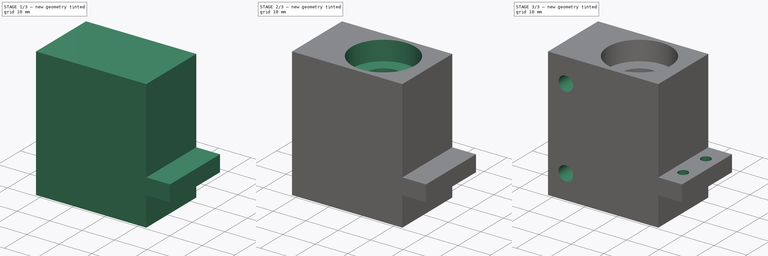
[diagram: build sequence overview — one tinted view per stage of 3, left to right]
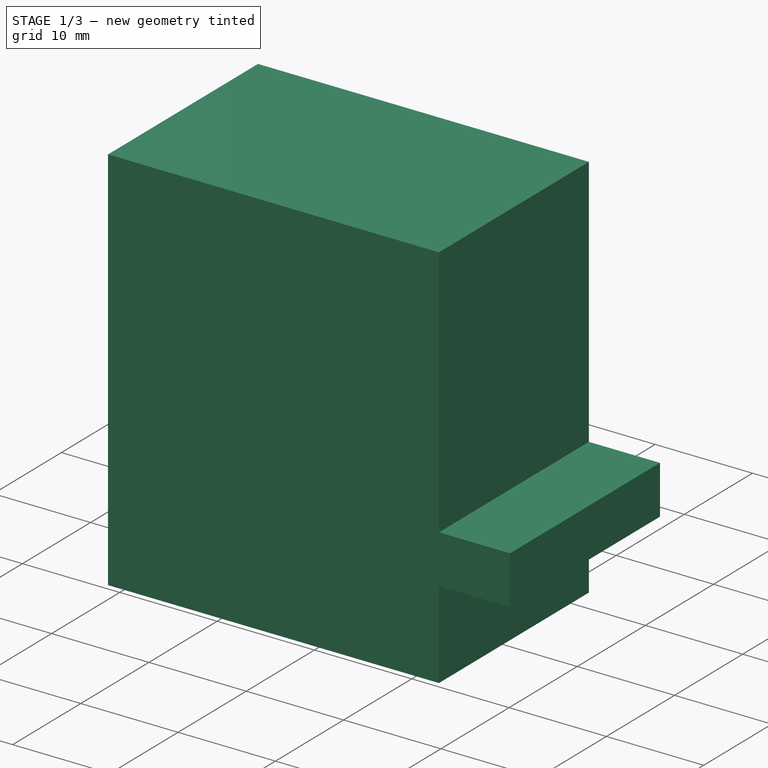
[diagram: stage 1 of 3 — iso view after this stage's code; geometry added in this stage tinted green]
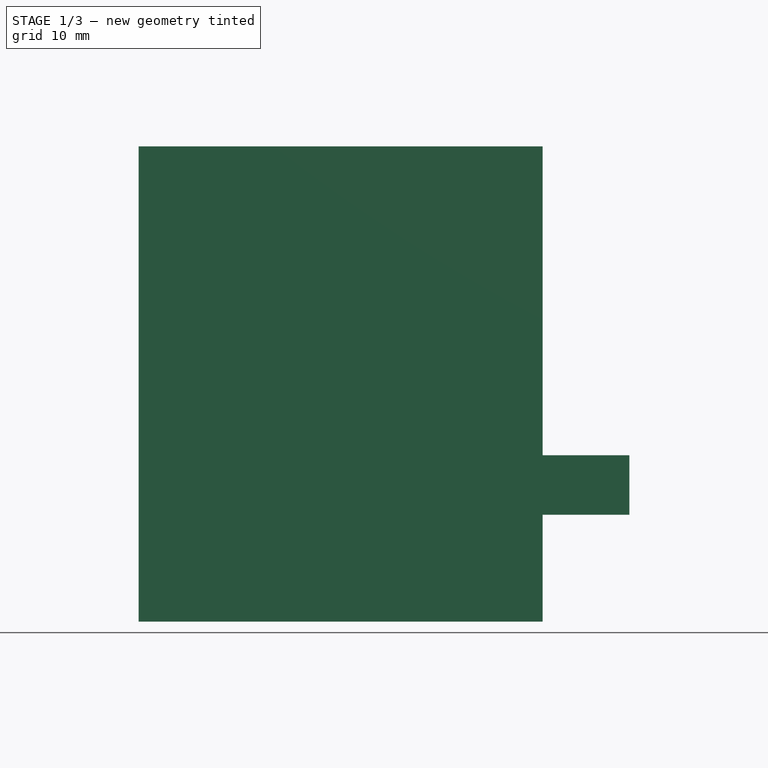
[diagram: stage 1 of 3 — front view after this stage's code; geometry added in this stage tinted green]
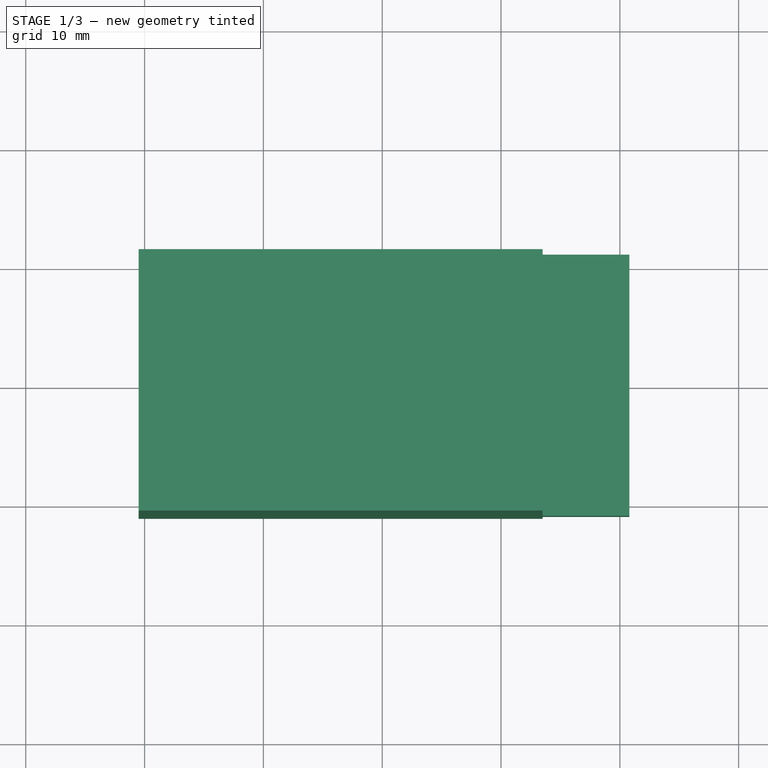
[diagram: stage 1 of 3 — top view after this stage's code; geometry added in this stage tinted green]
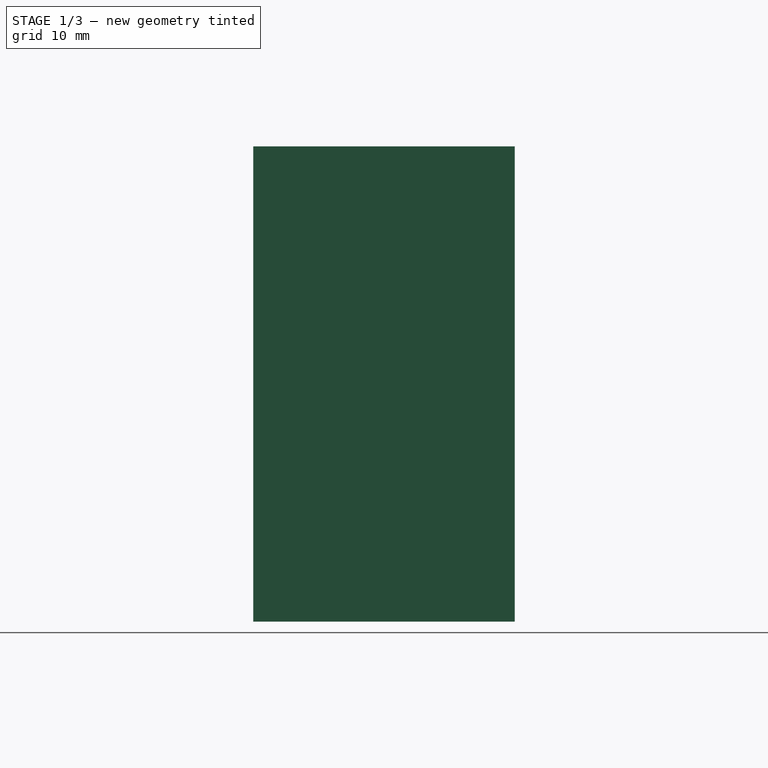
[diagram: stage 1 of 3 — right view after this stage's code; geometry added in this stage tinted green]
FCSTD DOCUMENT  (FreeCAD 0.18.4R)
Label: end_bearing_block
License: All rights reserved
LicenseURL: http://en.wikipedia.org/wiki/All_rights_reserved
objects: Sketcher::SketchObject×6, PartDesign::Pocket×5, PartDesign::Pad×1, PartDesign::Body×1
note: 19 computed .brp shape members not serialized (recipe doc carries the construction recipe); baked Part::Feature solids carry a one-line shape summary decoded from their .brp

FEATURE [Sketcher::SketchObject] Sketch
  MapMode = 5
  Placement = pos=(0,0,0) rot=(1,0,0;1.5708rad)
  Support = -> [XZ_Plane]
  sketch-geometry (8):
    g0: LineSegment StartX=-20.5 StartY=40 StartZ=0 EndX=-20.5 EndY=0 EndZ=0
    g1: LineSegment StartX=-20.5 StartY=0 StartZ=0 EndX=13.5 EndY=0 EndZ=0
    g2: LineSegment StartX=13.5 StartY=0 StartZ=0 EndX=13.5 EndY=9 EndZ=0
    g3: LineSegment StartX=13.5 StartY=9 StartZ=0 EndX=20.8 EndY=9 EndZ=0
    g4: LineSegment StartX=20.8 StartY=9 StartZ=0 EndX=20.8 EndY=14 EndZ=0
    g5: LineSegment StartX=20.8 StartY=14 StartZ=0 EndX=13.5 EndY=14 EndZ=0
    g6: LineSegment StartX=13.5 StartY=14 StartZ=0 EndX=13.5 EndY=40 EndZ=0
    g7: LineSegment StartX=13.5 StartY=40 StartZ=0 EndX=-20.5 EndY=40 EndZ=0
  constraints (24):
    c: Coincident(g0,g1)
    c: Coincident(g1,g2)
    c: Coincident(g2,g3)
    c: Coincident(g3,g4)
    c: Coincident(g4,g5)
    c: Coincident(g5,g6)
    c: Coincident(g6,g7)
    c: Coincident(g7,g0)
    c: Horizontal(g7)
    c: Horizontal(g1)
    c: Horizontal(g3)
    c: Horizontal(g5)
    c: Vertical(g6)
    c: Vertical(g2)
    c: Vertical(g4)
    c: Vertical(g0)
    c: Equal(g1,g7)
    c: PointOnObject(g-1,g1)
    c: DistanceX(g1,g1) = 34
    c: DistanceY(g2,g2) = 9
    c: DistanceX(g-1,g1) = 13.5
    c: DistanceX(g3,g3) = 7.3
    c: DistanceY(g4,g4) = 5
    c: DistanceY(g0,g0) = 40
FEATURE [PartDesign::Pad] Pad
  Length = 22
  Length2 = 100
  Midplane = true
  Placement = pos=(0,0,0) rot=(1,0,0;1.5708rad)
  Profile = -> Sketch
  Type = 0
FEATURE [Sketcher::SketchObject] Sketch001
  MapMode = 5
  Placement = pos=(0,0,0) rot=(1,0,0;3.14159rad)
  Support = -> [Pad]
  sketch-geometry (1):
    g0: Circle CenterX=0 CenterY=0 CenterZ=0 NormalX=0 NormalY=0 NormalZ=1 AngleXU=0 Radius=9.75
  constraints (2):
    c: Coincident(g0,g-1)
    c: Diameter(g0) = 19.5
FEATURE [PartDesign::Pocket] Pocket
  BaseFeature = -> Pad
  Length = 6
  Length2 = 100
  Placement = pos=(0,0,0) rot=(1,0,0;1.5708rad)
  Profile = -> Sketch001
  Type = 0
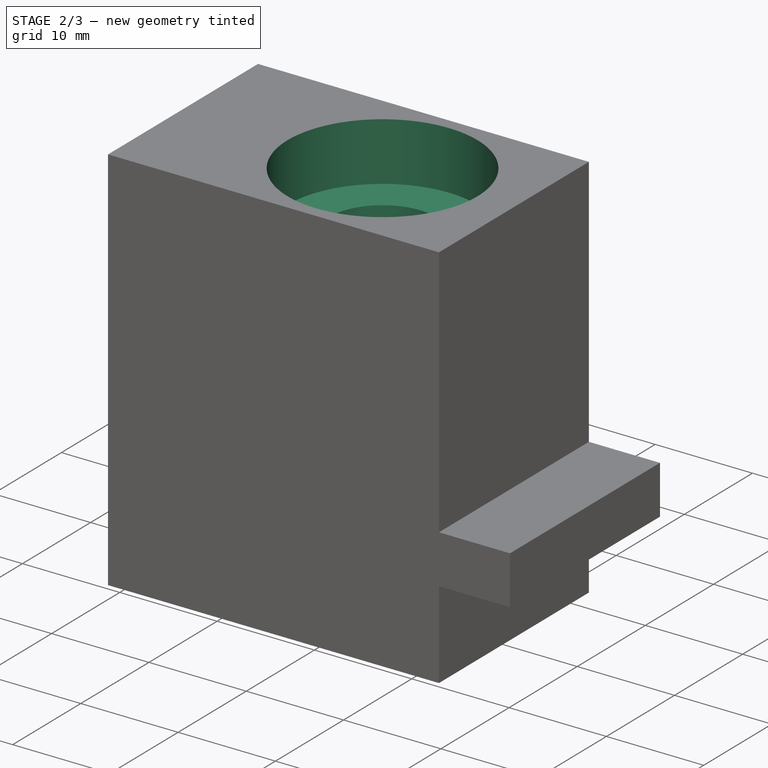
[diagram: stage 2 of 3 — iso view after this stage's code; geometry added in this stage tinted green]
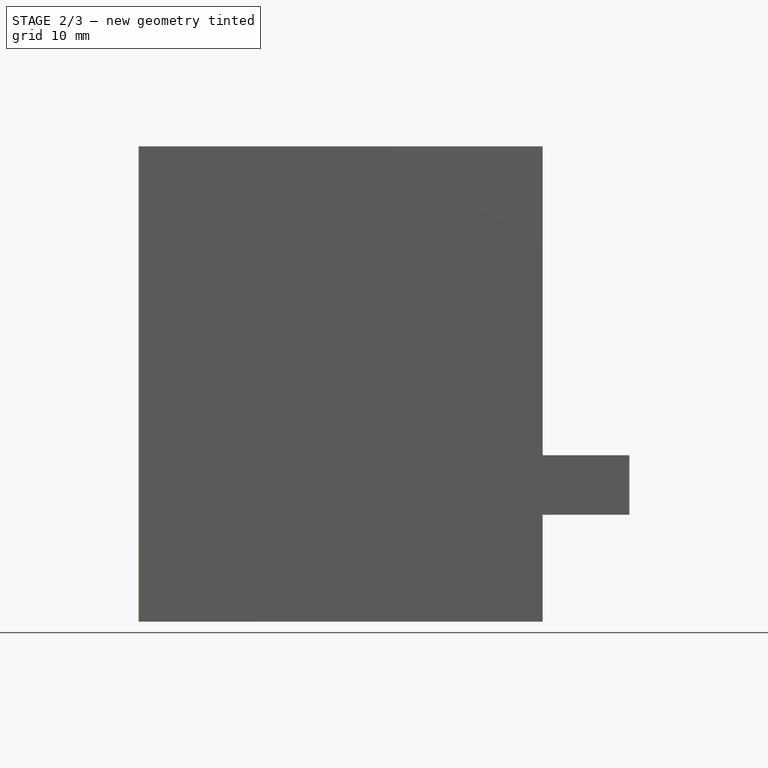
[diagram: stage 2 of 3 — front view after this stage's code; geometry added in this stage tinted green]
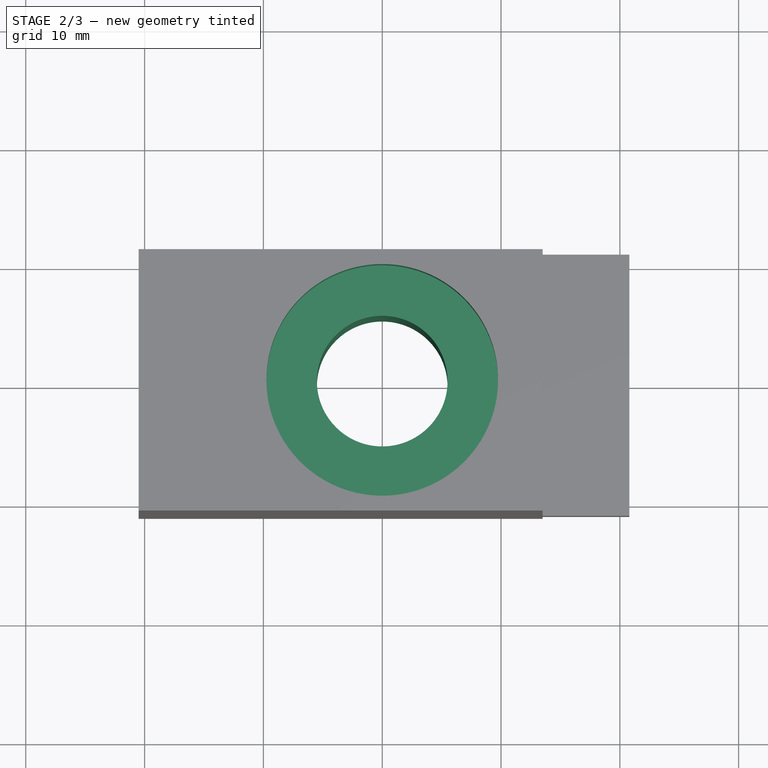
[diagram: stage 2 of 3 — top view after this stage's code; geometry added in this stage tinted green]
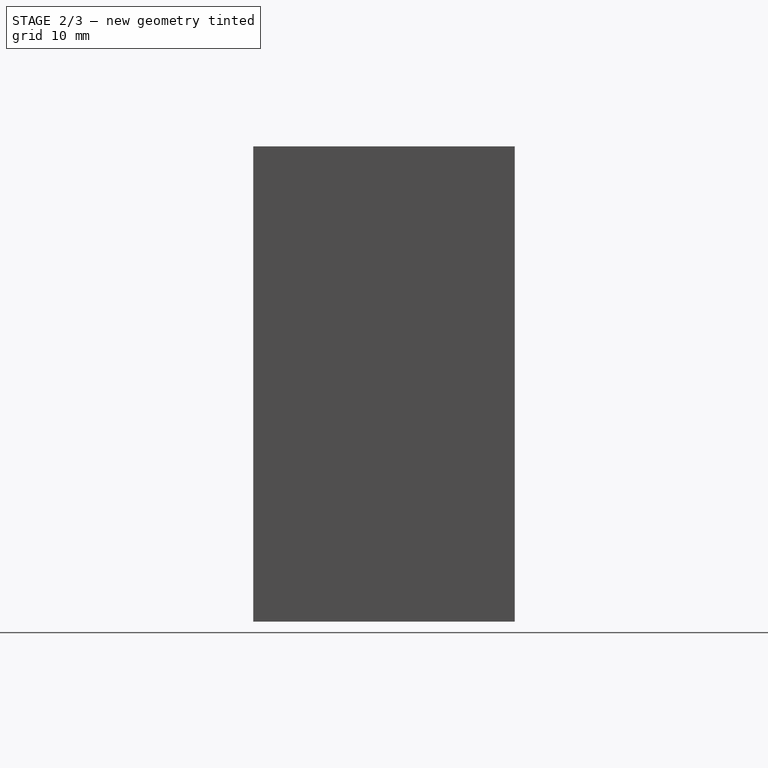
[diagram: stage 2 of 3 — right view after this stage's code; geometry added in this stage tinted green]
FEATURE [Sketcher::SketchObject] Sketch002
  MapMode = 5
  Placement = pos=(0,6.7e-15,6) rot=(1,0,0;3.14159rad)
  Support = -> [Pocket]
  sketch-geometry (1):
    g0: Circle CenterX=0 CenterY=0 CenterZ=0 NormalX=0 NormalY=0 NormalZ=1 AngleXU=0 Radius=5.5
  constraints (2):
    c: Coincident(g0,g-1)
    c: Diameter(g0) = 11
FEATURE [PartDesign::Pocket] Pocket001
  BaseFeature = -> Pocket
  Length = 40
  Length2 = 100
  Placement = pos=(0,0,0) rot=(1,0,0;1.5708rad)
  Profile = -> Sketch002
  Type = 0
FEATURE [Sketcher::SketchObject] Sketch003
  MapMode = 5
  Placement = pos=(0,6.22e-14,40) rot=(0,0,1;3.14159rad)
  Support = -> [Pocket001]
  sketch-geometry (1):
    g0: Circle CenterX=0 CenterY=0 CenterZ=0 NormalX=0 NormalY=0 NormalZ=1 AngleXU=0 Radius=9.75
  constraints (2):
    c: Coincident(g0,g-1)
    c: Diameter(g0) = 19.5
FEATURE [PartDesign::Pocket] Pocket002
  BaseFeature = -> Pocket001
  Length = 6
  Length2 = 100
  Placement = pos=(0,0,0) rot=(1,0,0;1.5708rad)
  Profile = -> Sketch003
  Type = 0
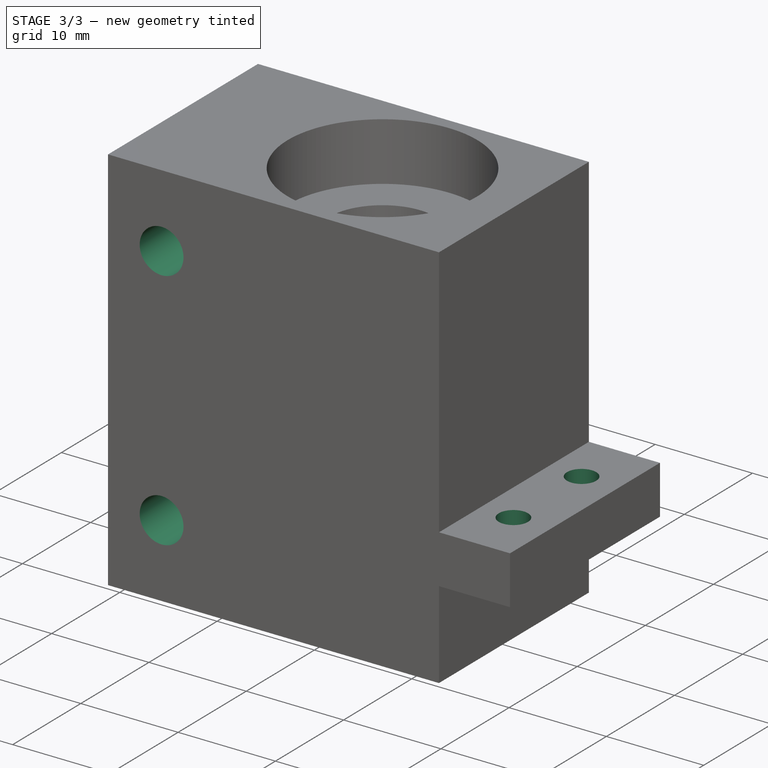
[diagram: stage 3 of 3 — iso view after this stage's code; geometry added in this stage tinted green]
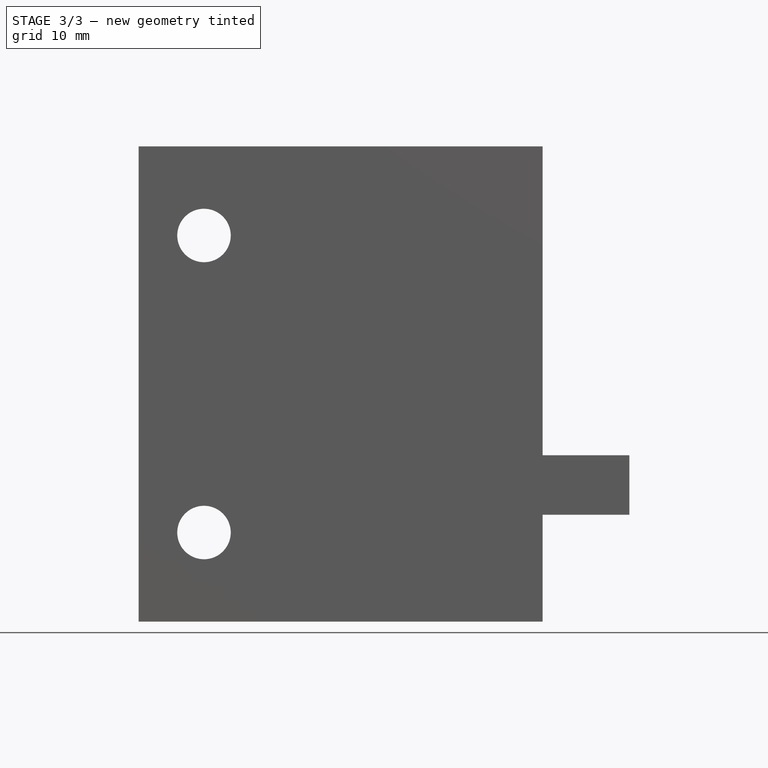
[diagram: stage 3 of 3 — front view after this stage's code; geometry added in this stage tinted green]
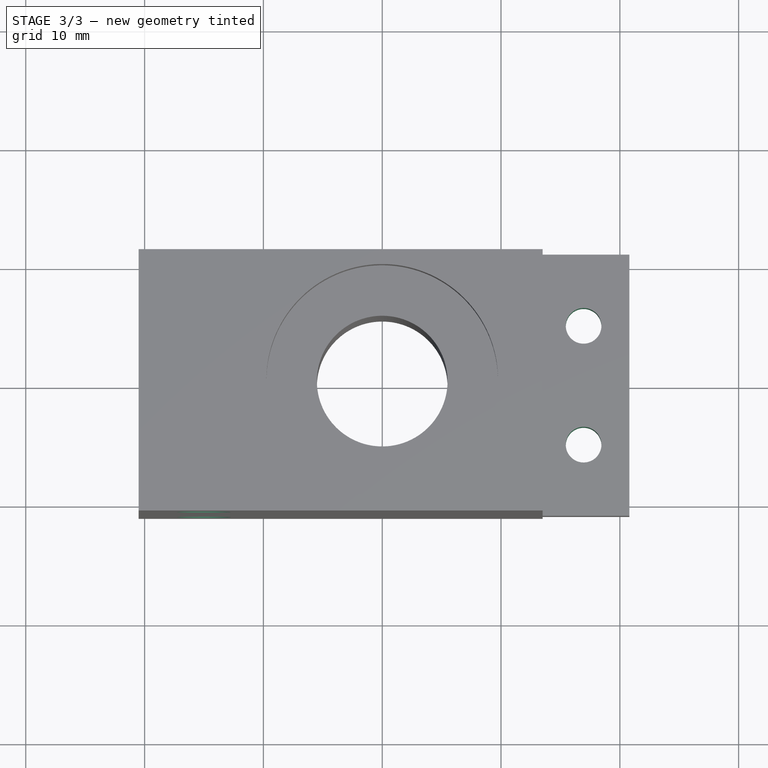
[diagram: stage 3 of 3 — top view after this stage's code; geometry added in this stage tinted green]
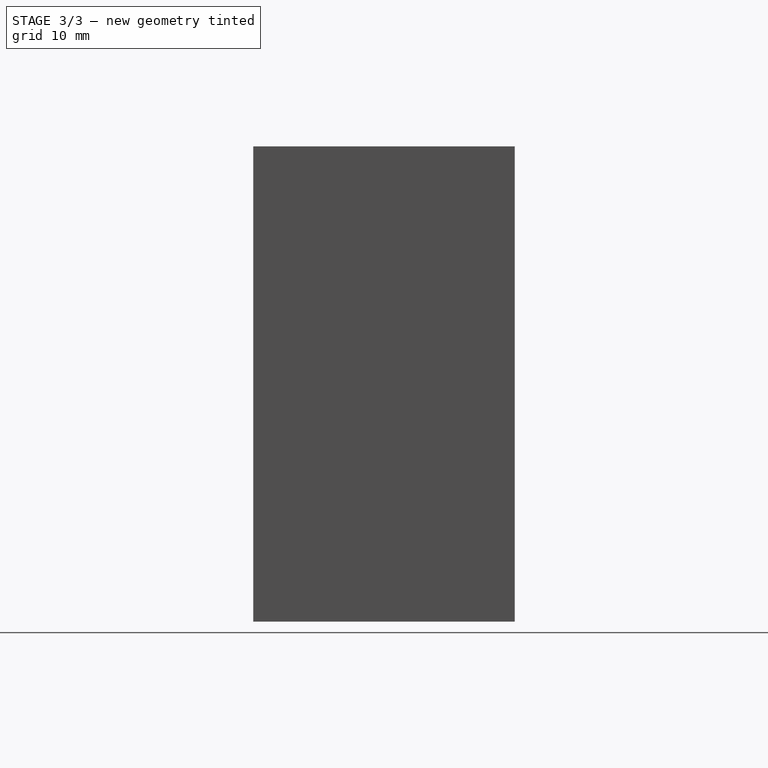
[diagram: stage 3 of 3 — right view after this stage's code; geometry added in this stage tinted green]
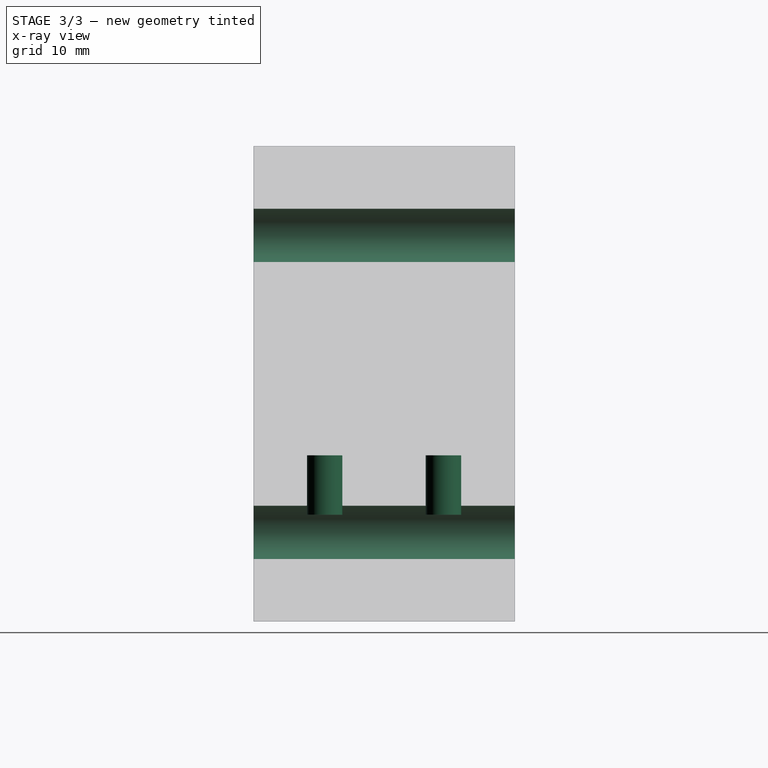
[diagram: stage 3 of 3 — x-ray composite at the right view; earlier geometry ghosted, this stage's added geometry solid]
FEATURE [Sketcher::SketchObject] Sketch004
  MapMode = 5
  Placement = pos=(0,-11,2.2e-14) rot=(1,0,0;1.5708rad)
  Support = -> [Pocket002]
  sketch-geometry (3):
    g0: Circle CenterX=-15 CenterY=32.5 CenterZ=0 NormalX=0 NormalY=0 NormalZ=1 AngleXU=0 Radius=2.25
    g1: Circle CenterX=-15 CenterY=7.5 CenterZ=0 NormalX=0 NormalY=0 NormalZ=1 AngleXU=0 Radius=2.25
    g2: LineSegment [constr] StartX=-15 StartY=32.5 StartZ=0 EndX=-15 EndY=7.5 EndZ=0
  constraints (8):
    c: Vertical(g2)
    c: Coincident(g2,g0)
    c: Coincident(g1,g2)
    c: DistanceY(g2,g2) = 25
    c: Diameter(g0) = 4.5
    c: Equal(g0,g1)
    c: DistanceX(g1,g-1) = 15
    c: DistanceY(g-1,g1) = 7.5
FEATURE [PartDesign::Pocket] Pocket003
  BaseFeature = -> Pocket002
  Length = 25
  Length2 = 100
  Placement = pos=(0,0,0) rot=(1,0,0;1.5708rad)
  Profile = -> Sketch004
  Type = 0
FEATURE [Sketcher::SketchObject] Sketch005
  MapMode = 5
  Placement = pos=(0,2.2e-14,9) rot=(1,0,0;3.14159rad)
  Support = -> [Pocket003]
  sketch-geometry (6):
    g0: Circle CenterX=16.95 CenterY=5 CenterZ=0 NormalX=0 NormalY=0 NormalZ=1 AngleXU=0 Radius=1.5
    g1: Circle CenterX=16.95 CenterY=-5 CenterZ=0 NormalX=0 NormalY=0 NormalZ=1 AngleXU=0 Radius=1.5
    g2: LineSegment [constr] StartX=0 StartY=5 StartZ=0 EndX=16.95 EndY=5 EndZ=0
    g3: LineSegment [constr] StartX=16.95 StartY=5 StartZ=0 EndX=16.95 EndY=-5 EndZ=0
    g4: LineSegment [constr] StartX=16.95 StartY=-5 StartZ=0 EndX=0 EndY=-5 EndZ=0
    g5: LineSegment [constr] StartX=0 StartY=-5 StartZ=0 EndX=0 EndY=5 EndZ=0
  constraints (15):
    c: Coincident(g2,g3)
    c: Coincident(g3,g4)
    c: Coincident(g4,g5)
    c: Coincident(g5,g2)
    c: Horizontal(g2)
    c: Horizontal(g4)
    c: Vertical(g3)
    c: Vertical(g5)
    c: Symmetric(g2,g4,g-1)
    c: DistanceY(g3,g3) = 10
    c: DistanceX(g2,g2) = 16.95
    c: Coincident(g0,g2)
    c: Coincident(g1,g3)
    c: Diameter(g1) = 3
    c: Equal(g1,g0)
FEATURE [PartDesign::Pocket] Pocket004
  BaseFeature = -> Pocket003
  Length = 5
  Length2 = 100
  Placement = pos=(0,0,0) rot=(1,0,0;1.5708rad)
  Profile = -> Sketch005
  Type = 0
FEATURE [PartDesign::Body] Body  label="End_Bearing_Block"
  Group = -> [Sketch,Pad,Sketch001,Pocket,Sketch002,Pocket001,Sketch003,Pocket002,Sketch004,Pocket003,Sketch005,Pocket004]
  Origin = -> Origin
  Tip = -> Pocket004
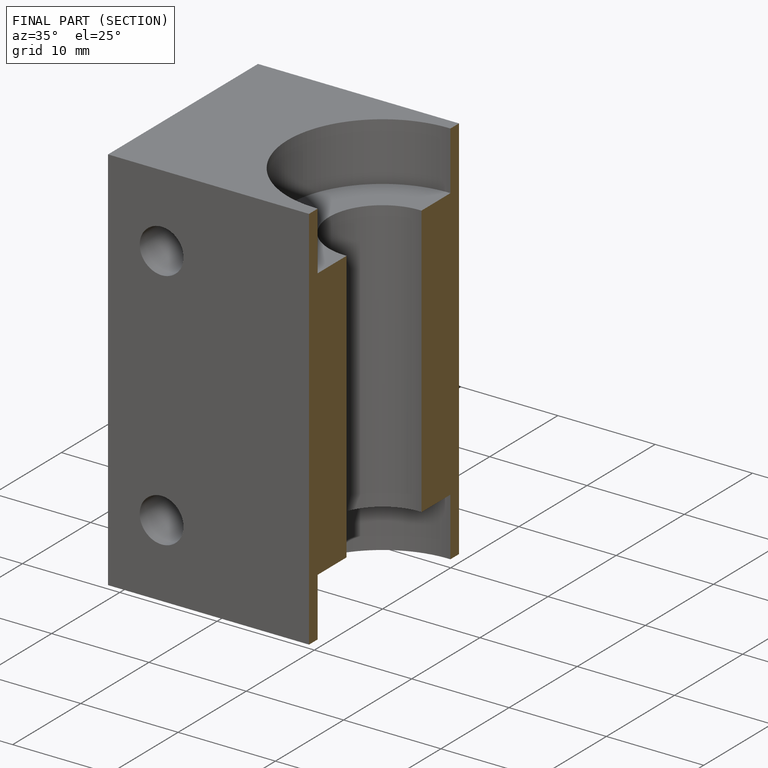
[diagram: finished part — half-section view (interior)]
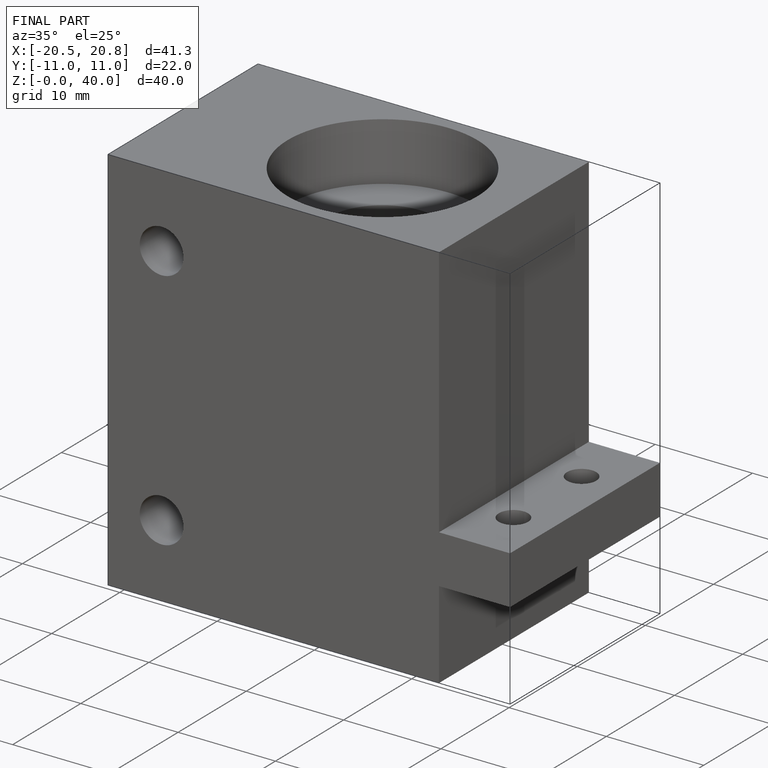
[diagram: finished part — iso view with bounding-box wireframe]
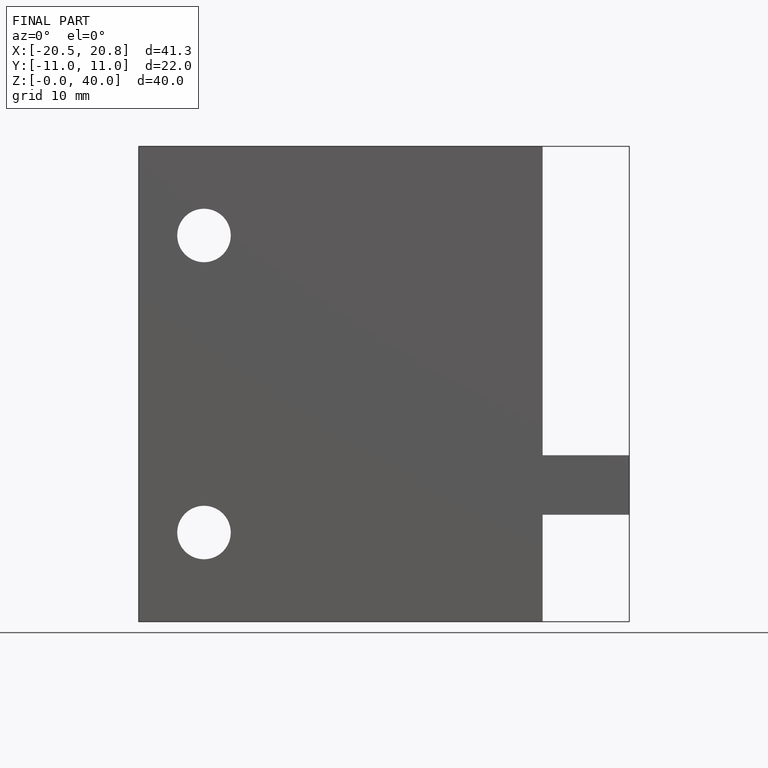
[diagram: finished part — front view with bounding-box wireframe]
